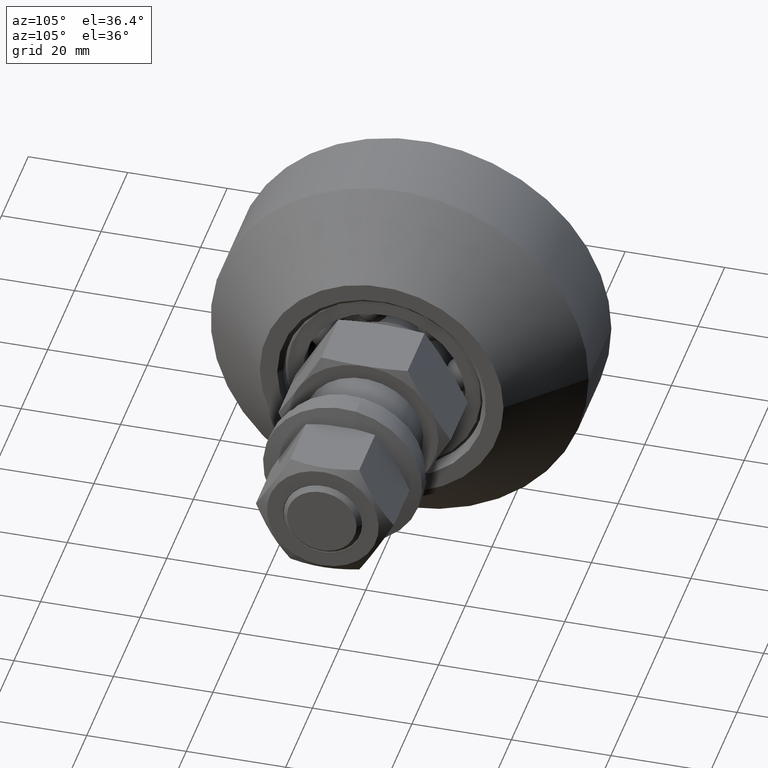
[diagram: clean part render]
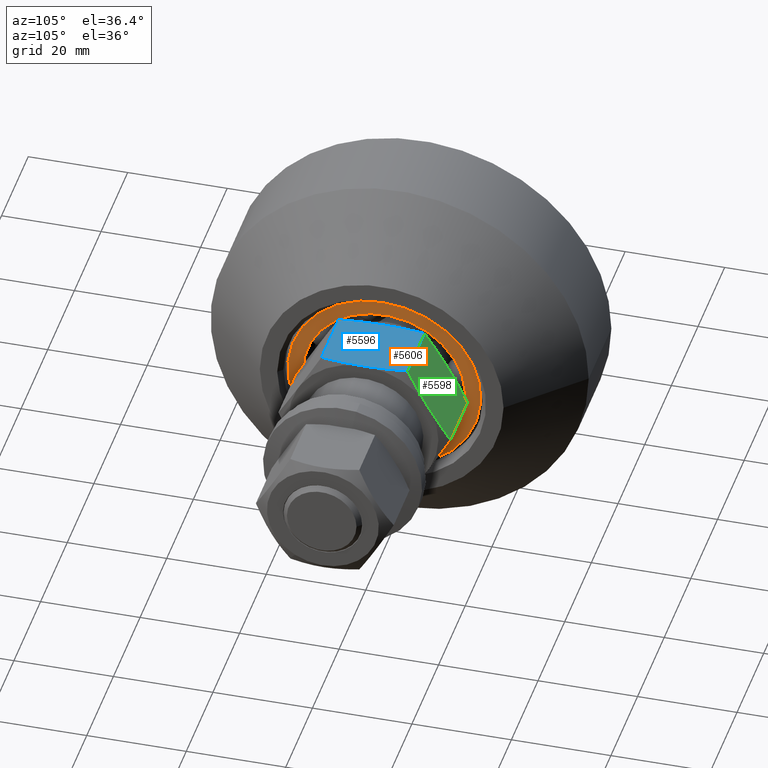
[diagram: same view with three faces highlighted in distinct colors, each labeled with its STEP entity id]
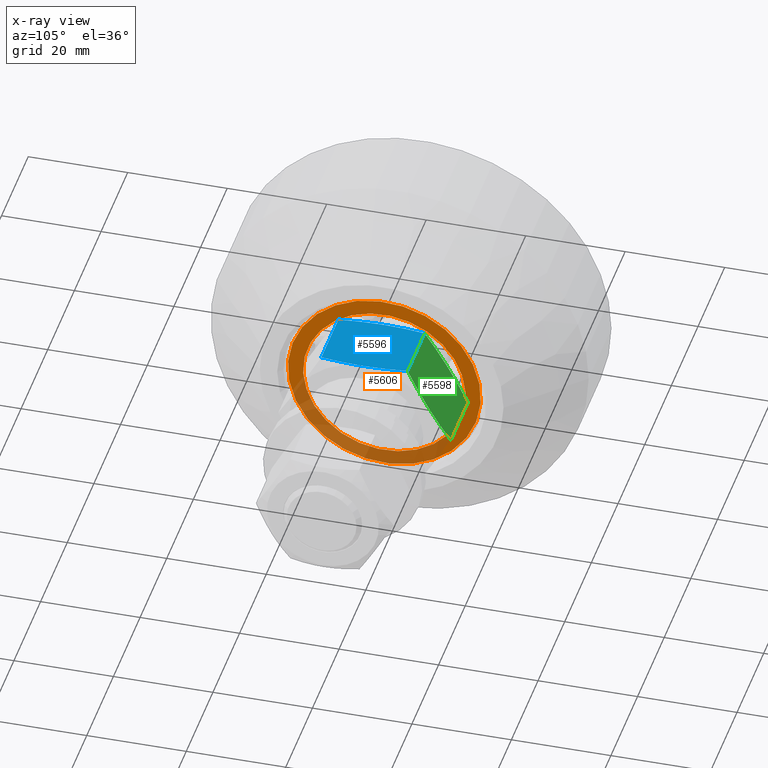
[diagram: x-ray of the same camera — body ghosted, the three highlighted faces saturated]
A machine part, auxiliary view with three faces highlighted in distinct colors.
The next image is the same camera in x-ray (body ghosted, the three faces saturated) — at least one of them is partly hidden behind the body in this view.
Their STEP definitions:

[orange] entity #5606 — the highlighted planar face has unit normal (1, 0, -0).
#178=FACE_BOUND('',#1187,.T.);
#574=PLANE('',#6384);
#869=FACE_OUTER_BOUND('',#1186,.T.);
#1186=EDGE_LOOP('',(#5092));
#1187=EDGE_LOOP('',(#5093));
#2134=CIRCLE('',#6380,19.4);
#2137=CIRCLE('',#6385,16.32);
#2673=VERTEX_POINT('',#9882);
#2676=VERTEX_POINT('',#9892);
#3496=EDGE_CURVE('',#2673,#2673,#2134,.T.);
#3500=EDGE_CURVE('',#2676,#2676,#2137,.T.);
#5092=ORIENTED_EDGE('',*,*,#3496,.F.);
#5093=ORIENTED_EDGE('',*,*,#3500,.T.);
#5606=ADVANCED_FACE('',(#869,#178),#574,.T.);
#6380=AXIS2_PLACEMENT_3D('',#9884,#7871,#7872);
#6384=AXIS2_PLACEMENT_3D('',#9891,#7880,#7881);
#6385=AXIS2_PLACEMENT_3D('',#9893,#7882,#7883);
#7871=DIRECTION('center_axis',(0.,0.,1.));
#7872=DIRECTION('ref_axis',(-1.22464679914735E-16,-1.,0.));
#7880=DIRECTION('center_axis',(0.,0.,-1.));
#7881=DIRECTION('ref_axis',(-1.,0.,0.));
#7882=DIRECTION('center_axis',(0.,0.,1.));
#7883=DIRECTION('ref_axis',(0.,1.,-1.0200324008401E-16));
#9882=CARTESIAN_POINT('',(-19.4,-2.37581479034587E-15,-8.32667268468867E-16));
#9884=CARTESIAN_POINT('Origin',(0.,0.,-8.32667268468867E-16));
#9891=CARTESIAN_POINT('Origin',(0.,14.25,-8.48749079253945E-16));
#9892=CARTESIAN_POINT('',(1.99862357620848E-15,-16.32,-8.32667268468867E-16));
#9893=CARTESIAN_POINT('Origin',(0.,0.,-8.32667268468867E-16));

[blue] entity #5596 — the highlighted planar face has unit normal (-0, -0, 1).
#333=(
BOUNDED_CURVE()
B_SPLINE_CURVE(2,(#9702,#9703,#9704),.UNSPECIFIED.,.F.,.F.)
B_SPLINE_CURVE_WITH_KNOTS((3,3),(0.,0.790327458731378),.UNSPECIFIED.)
CURVE()
GEOMETRIC_REPRESENTATION_ITEM()
RATIONAL_B_SPLINE_CURVE((1.,1.03103791671953,1.))
REPRESENTATION_ITEM('')
);
#339=(
BOUNDED_CURVE()
B_SPLINE_CURVE(2,(#9734,#9735,#9736),.UNSPECIFIED.,.F.,.F.)
B_SPLINE_CURVE_WITH_KNOTS((3,3),(0.,0.790327458731378),.UNSPECIFIED.)
CURVE()
GEOMETRIC_REPRESENTATION_ITEM()
RATIONAL_B_SPLINE_CURVE((1.,1.03103791671952,1.))
REPRESENTATION_ITEM('')
);
#345=(
BOUNDED_CURVE()
B_SPLINE_CURVE(2,(#9768,#9769,#9770),.UNSPECIFIED.,.F.,.F.)
B_SPLINE_CURVE_WITH_KNOTS((3,3),(0.,0.790327458731379),.UNSPECIFIED.)
CURVE()
GEOMETRIC_REPRESENTATION_ITEM()
RATIONAL_B_SPLINE_CURVE((1.,1.03103791671952,1.))
REPRESENTATION_ITEM('')
);
#347=(
BOUNDED_CURVE()
B_SPLINE_CURVE(2,(#9778,#9779,#9780),.UNSPECIFIED.,.F.,.F.)
B_SPLINE_CURVE_WITH_KNOTS((3,3),(0.,0.790327458731379),.UNSPECIFIED.)
CURVE()
GEOMETRIC_REPRESENTATION_ITEM()
RATIONAL_B_SPLINE_CURVE((1.,1.03103791671949,1.))
REPRESENTATION_ITEM('')
);
#569=PLANE('',#6357);
#859=FACE_OUTER_BOUND('',#1174,.T.);
#1174=EDGE_LOOP('',(#5037,#5038,#5039,#5040,#5041,#5042,#5043,#5044));
#1526=LINE('',#9829,#1844);
#1534=LINE('',#9838,#1852);
#1540=LINE('',#9848,#1858);
#1541=LINE('',#9849,#1859);
#1844=VECTOR('',#7800,10.);
#1852=VECTOR('',#7810,10.);
#1858=VECTOR('',#7824,10.);
#1859=VECTOR('',#7825,10.);
#2628=VERTEX_POINT('',#9696);
#2629=VERTEX_POINT('',#9700);
#2636=VERTEX_POINT('',#9728);
#2638=VERTEX_POINT('',#9733);
#2646=VERTEX_POINT('',#9762);
#2647=VERTEX_POINT('',#9766);
#2648=VERTEX_POINT('',#9772);
#2650=VERTEX_POINT('',#9777);
#3430=EDGE_CURVE('',#2628,#2629,#333,.T.);
#3438=EDGE_CURVE('',#2638,#2636,#339,.T.);
#3448=EDGE_CURVE('',#2646,#2647,#345,.T.);
#3450=EDGE_CURVE('',#2650,#2648,#347,.T.);
#3466=EDGE_CURVE('',#2629,#2638,#1526,.T.);
#3474=EDGE_CURVE('',#2647,#2650,#1534,.T.);
#3480=EDGE_CURVE('',#2646,#2636,#1540,.T.);
#3481=EDGE_CURVE('',#2648,#2628,#1541,.T.);
#5037=ORIENTED_EDGE('',*,*,#3438,.T.);
#5038=ORIENTED_EDGE('',*,*,#3480,.F.);
#5039=ORIENTED_EDGE('',*,*,#3448,.T.);
#5040=ORIENTED_EDGE('',*,*,#3474,.T.);
#5041=ORIENTED_EDGE('',*,*,#3450,.T.);
#5042=ORIENTED_EDGE('',*,*,#3481,.T.);
#5043=ORIENTED_EDGE('',*,*,#3430,.T.);
#5044=ORIENTED_EDGE('',*,*,#3466,.T.);
#5596=ADVANCED_FACE('',(#859),#569,.T.);
#6357=AXIS2_PLACEMENT_3D('',#9847,#7822,#7823);
#7800=DIRECTION('',(0.,-0.866025403784438,0.5));
#7810=DIRECTION('',(0.,0.866025403784438,-0.5));
#7822=DIRECTION('center_axis',(0.,0.5,0.866025403784438));
#7823=DIRECTION('ref_axis',(0.,0.866025403784438,-0.5));
#7824=DIRECTION('',(-1.,0.,0.));
#7825=DIRECTION('',(-1.,0.,0.));
#9696=CARTESIAN_POINT('',(2.11628314259158,15.,8.66025403784438));
#9700=CARTESIAN_POINT('',(1.5,8.17951978549102,12.5980601256937));
#9702=CARTESIAN_POINT('Ctrl Pts',(2.11628314259158,15.,8.66025403784438));
#9703=CARTESIAN_POINT('Ctrl Pts',(1.55119818764891,11.3472334300651,10.7691798002832));
#9704=CARTESIAN_POINT('Ctrl Pts',(1.5,8.17951978549104,12.5980601256937));
#9728=CARTESIAN_POINT('',(2.11628314259158,0.,17.3205080756888));
#9733=CARTESIAN_POINT('',(1.5,6.82048021450899,13.3827019878395));
#9734=CARTESIAN_POINT('Ctrl Pts',(1.5,6.82048021450897,13.3827019878395));
#9735=CARTESIAN_POINT('Ctrl Pts',(1.55119818764891,3.65276656993496,15.21158231325));
#9736=CARTESIAN_POINT('Ctrl Pts',(2.11628314259158,8.3242522385071E-15,
17.3205080756888));
#9762=CARTESIAN_POINT('',(14.8837168574084,0.,17.3205080756888));
#9766=CARTESIAN_POINT('',(15.5,6.82048021450899,13.3827019878395));
#9768=CARTESIAN_POINT('Ctrl Pts',(14.8837168574084,0.,17.3205080756888));
#9769=CARTESIAN_POINT('Ctrl Pts',(15.4488018123511,3.65276656993496,15.21158231325));
#9770=CARTESIAN_POINT('Ctrl Pts',(15.5,6.82048021450897,13.3827019878395));
#9772=CARTESIAN_POINT('',(14.8837168574084,15.,8.66025403784438));
#9777=CARTESIAN_POINT('',(15.5,8.17951978549102,12.5980601256937));
#9778=CARTESIAN_POINT('Ctrl Pts',(15.5,8.17951978549104,12.5980601256937));
#9779=CARTESIAN_POINT('Ctrl Pts',(15.4488018123511,11.347233430065,10.7691798002832));
#9780=CARTESIAN_POINT('Ctrl Pts',(14.8837168574084,15.,8.66025403784438));
#9829=CARTESIAN_POINT('',(1.5,3.75,15.1554445662277));
#9838=CARTESIAN_POINT('',(15.5,3.88578058618805E-15,17.3205080756888));
#9847=CARTESIAN_POINT('Origin',(15.5,3.88578058618805E-15,17.3205080756888));
#9848=CARTESIAN_POINT('',(15.5,3.88578058618805E-15,17.3205080756888));
#9849=CARTESIAN_POINT('',(15.5,15.,8.66025403784439));

[green] entity #5598 — the highlighted planar face has unit normal (-0, 0.866, 0.5).
#332=(
BOUNDED_CURVE()
B_SPLINE_CURVE(2,(#9697,#9698,#9699),.UNSPECIFIED.,.F.,.F.)
B_SPLINE_CURVE_WITH_KNOTS((3,3),(0.,0.790327458731379),.UNSPECIFIED.)
CURVE()
GEOMETRIC_REPRESENTATION_ITEM()
RATIONAL_B_SPLINE_CURVE((1.,1.03103791671952,1.))
REPRESENTATION_ITEM('')
);
#334=(
BOUNDED_CURVE()
B_SPLINE_CURVE(2,(#9708,#9709,#9710),.UNSPECIFIED.,.F.,.F.)
B_SPLINE_CURVE_WITH_KNOTS((3,3),(0.,0.790327458731379),.UNSPECIFIED.)
CURVE()
GEOMETRIC_REPRESENTATION_ITEM()
RATIONAL_B_SPLINE_CURVE((1.,1.03103791671952,1.))
REPRESENTATION_ITEM('')
);
#346=(
BOUNDED_CURVE()
B_SPLINE_CURVE(2,(#9774,#9775,#9776),.UNSPECIFIED.,.F.,.F.)
B_SPLINE_CURVE_WITH_KNOTS((3,3),(0.,0.790327458731372),.UNSPECIFIED.)
CURVE()
GEOMETRIC_REPRESENTATION_ITEM()
RATIONAL_B_SPLINE_CURVE((1.,1.03103791671951,1.))
REPRESENTATION_ITEM('')
);
#348=(
BOUNDED_CURVE()
B_SPLINE_CURVE(2,(#9785,#9786,#9787),.UNSPECIFIED.,.F.,.F.)
B_SPLINE_CURVE_WITH_KNOTS((3,3),(0.,0.790327458731372),.UNSPECIFIED.)
CURVE()
GEOMETRIC_REPRESENTATION_ITEM()
RATIONAL_B_SPLINE_CURVE((1.,1.03103791671951,1.))
REPRESENTATION_ITEM('')
);
#571=PLANE('',#6359);
#861=FACE_OUTER_BOUND('',#1176,.T.);
#1176=EDGE_LOOP('',(#5053,#5054,#5055,#5056,#5057,#5058,#5059,#5060));
#1527=LINE('',#9830,#1845);
#1533=LINE('',#9837,#1851);
#1539=LINE('',#9846,#1857);
#1541=LINE('',#9849,#1859);
#1845=VECTOR('',#7801,10.);
#1851=VECTOR('',#7809,10.);
#1857=VECTOR('',#7821,10.);
#1859=VECTOR('',#7825,10.);
#2627=VERTEX_POINT('',#9695);
#2628=VERTEX_POINT('',#9696);
#2630=VERTEX_POINT('',#9706);
#2631=VERTEX_POINT('',#9707);
#2648=VERTEX_POINT('',#9772);
#2649=VERTEX_POINT('',#9773);
#2651=VERTEX_POINT('',#9783);
#2652=VERTEX_POINT('',#9784);
#3428=EDGE_CURVE('',#2627,#2628,#332,.T.);
#3431=EDGE_CURVE('',#2630,#2631,#334,.T.);
#3449=EDGE_CURVE('',#2648,#2649,#346,.T.);
#3452=EDGE_CURVE('',#2651,#2652,#348,.T.);
#3467=EDGE_CURVE('',#2631,#2627,#1527,.T.);
#3473=EDGE_CURVE('',#2649,#2651,#1533,.T.);
#3479=EDGE_CURVE('',#2652,#2630,#1539,.T.);
#3481=EDGE_CURVE('',#2648,#2628,#1541,.T.);
#5053=ORIENTED_EDGE('',*,*,#3431,.T.);
#5054=ORIENTED_EDGE('',*,*,#3467,.T.);
#5055=ORIENTED_EDGE('',*,*,#3428,.T.);
#5056=ORIENTED_EDGE('',*,*,#3481,.F.);
#5057=ORIENTED_EDGE('',*,*,#3449,.T.);
#5058=ORIENTED_EDGE('',*,*,#3473,.T.);
#5059=ORIENTED_EDGE('',*,*,#3452,.T.);
#5060=ORIENTED_EDGE('',*,*,#3479,.T.);
#5598=ADVANCED_FACE('',(#861),#571,.T.);
#6359=AXIS2_PLACEMENT_3D('',#9851,#7828,#7829);
#7801=DIRECTION('',(0.,0.,1.));
#7809=DIRECTION('',(0.,0.,-1.));
#7821=DIRECTION('',(-1.,0.,0.));
#7825=DIRECTION('',(-1.,0.,0.));
#7828=DIRECTION('center_axis',(0.,1.,0.));
#7829=DIRECTION('ref_axis',(0.,0.,-1.));
#9695=CARTESIAN_POINT('',(1.5,15.,0.784641862145888));
#9696=CARTESIAN_POINT('',(2.11628314259158,15.,8.66025403784438));
#9697=CARTESIAN_POINT('Ctrl Pts',(1.5,15.,0.784641862145854));
#9698=CARTESIAN_POINT('Ctrl Pts',(1.55119818764891,15.,4.44240251296674));
#9699=CARTESIAN_POINT('Ctrl Pts',(2.11628314259158,15.,8.66025403784439));
#9706=CARTESIAN_POINT('',(2.11628314259158,15.,-8.66025403784439));
#9707=CARTESIAN_POINT('',(1.5,15.,-0.784641862145888));
#9708=CARTESIAN_POINT('Ctrl Pts',(2.11628314259158,15.,-8.66025403784439));
#9709=CARTESIAN_POINT('Ctrl Pts',(1.55119818764891,15.,-4.44240251296674));
#9710=CARTESIAN_POINT('Ctrl Pts',(1.5,15.,-0.784641862145854));
#9772=CARTESIAN_POINT('',(14.8837168574084,15.,8.66025403784438));
#9773=CARTESIAN_POINT('',(15.5,15.,0.784641862145888));
#9774=CARTESIAN_POINT('Ctrl Pts',(14.8837168574084,15.,8.6602540378444));
#9775=CARTESIAN_POINT('Ctrl Pts',(15.4488018123511,15.,4.44240251296679));
#9776=CARTESIAN_POINT('Ctrl Pts',(15.5,15.,0.784641862145928));
#9783=CARTESIAN_POINT('',(15.5,15.,-0.784641862145888));
#9784=CARTESIAN_POINT('',(14.8837168574084,15.,-8.66025403784439));
#9785=CARTESIAN_POINT('Ctrl Pts',(15.5,15.,-0.784641862145928));
#9786=CARTESIAN_POINT('Ctrl Pts',(15.4488018123511,15.,-4.44240251296679));
#9787=CARTESIAN_POINT('Ctrl Pts',(14.8837168574084,15.,-8.6602540378444));
#9830=CARTESIAN_POINT('',(1.5,15.,-5.55111512312578E-16));
#9837=CARTESIAN_POINT('',(15.5,15.,8.66025403784439));
#9846=CARTESIAN_POINT('',(15.5,15.,-8.66025403784439));
#9849=CARTESIAN_POINT('',(15.5,15.,8.66025403784439));
#9851=CARTESIAN_POINT('Origin',(15.5,15.,-1.11022302462516E-15));